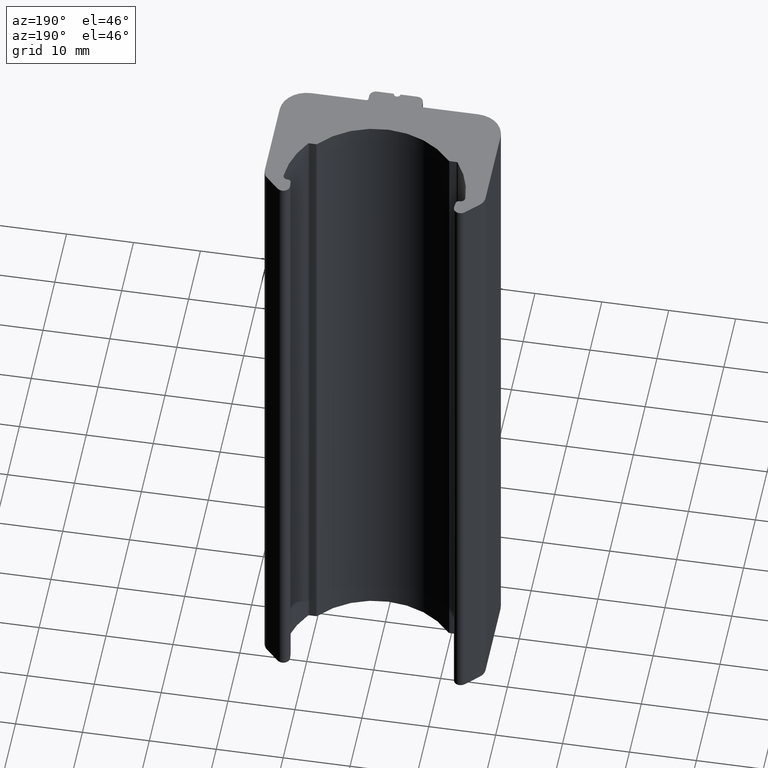
[diagram: clean part render]
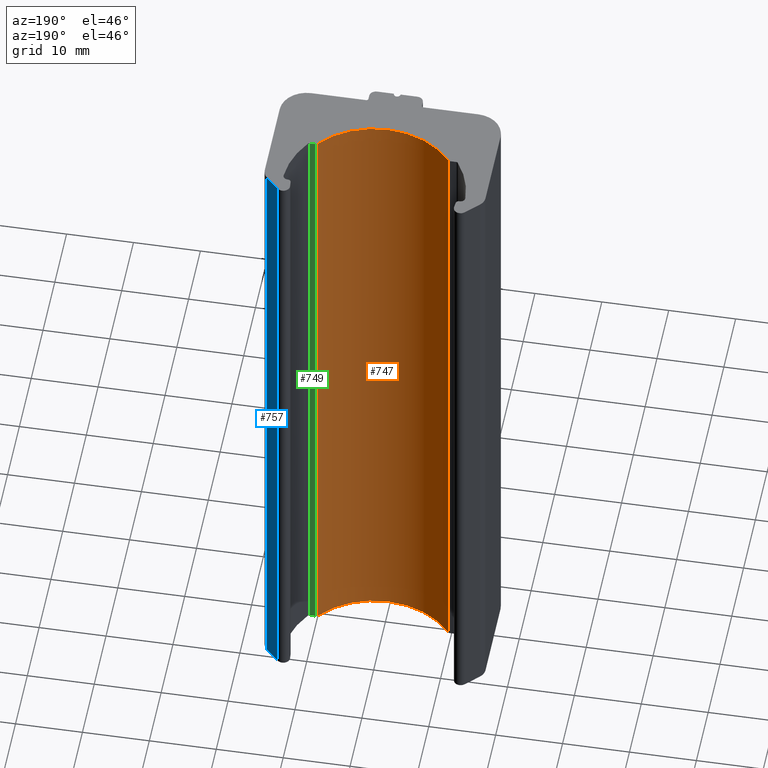
[diagram: same view with three faces highlighted in distinct colors, each labeled with its STEP entity id]
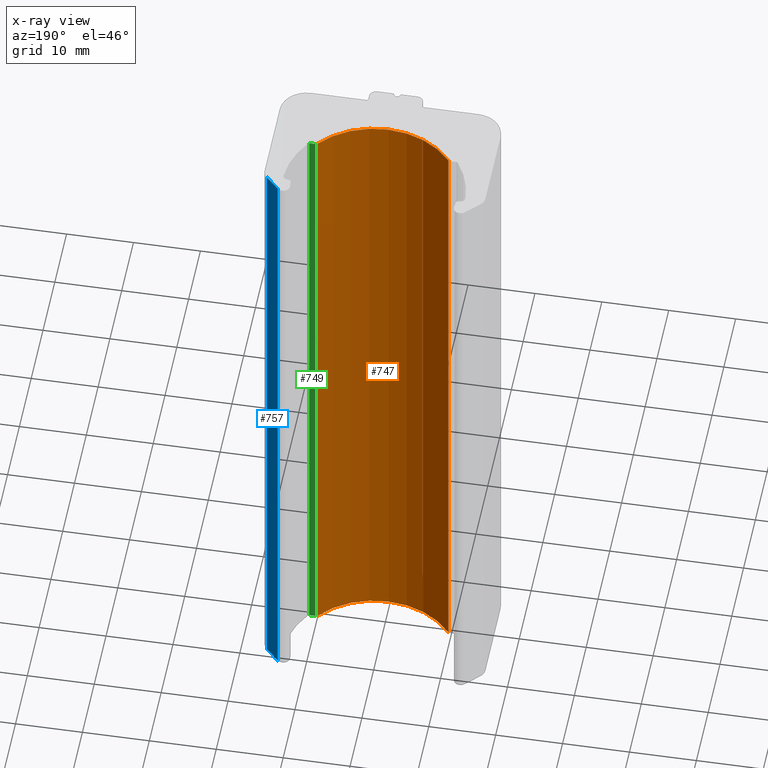
[diagram: x-ray of the same camera — body ghosted, the three highlighted faces saturated]
A machine part, auxiliary view with three faces highlighted in distinct colors.
The next image is the same camera in x-ray (body ghosted, the three faces saturated) — at least one of them is partly hidden behind the body in this view.
Their STEP definitions:

[orange] entity #747 — the highlighted cylindrical surface (partial cylindrical patch) has radius 12.6 mm, axis along (0, 0, 1).
#21=CYLINDRICAL_SURFACE('',#817,12.6);
#47=FACE_OUTER_BOUND('',#87,.T.);
#87=EDGE_LOOP('',(#565,#566,#567,#568));
#123=CIRCLE('',#786,12.6);
#145=CIRCLE('',#818,12.6);
#189=LINE('',#1218,#259);
#190=LINE('',#1222,#260);
#259=VECTOR('',#969,100.);
#260=VECTOR('',#974,100.);
#311=VERTEX_POINT('',#1124);
#312=VERTEX_POINT('',#1126);
#348=VERTEX_POINT('',#1216);
#349=VERTEX_POINT('',#1220);
#387=EDGE_CURVE('',#311,#312,#123,.T.);
#433=EDGE_CURVE('',#311,#348,#189,.T.);
#434=EDGE_CURVE('',#349,#348,#145,.T.);
#435=EDGE_CURVE('',#312,#349,#190,.T.);
#565=ORIENTED_EDGE('',*,*,#433,.T.);
#566=ORIENTED_EDGE('',*,*,#434,.F.);
#567=ORIENTED_EDGE('',*,*,#435,.F.);
#568=ORIENTED_EDGE('',*,*,#387,.F.);
#747=ADVANCED_FACE('',(#47),#21,.F.);
#786=AXIS2_PLACEMENT_3D('',#1127,#883,#884);
#817=AXIS2_PLACEMENT_3D('',#1219,#970,#971);
#818=AXIS2_PLACEMENT_3D('',#1221,#972,#973);
#883=DIRECTION('center_axis',(0.,0.,1.));
#884=DIRECTION('ref_axis',(0.776098275501474,0.63061197797349,0.));
#969=DIRECTION('',(0.,0.,1.));
#970=DIRECTION('center_axis',(0.,0.,1.));
#971=DIRECTION('ref_axis',(0.776098275501474,0.63061197797349,0.));
#972=DIRECTION('center_axis',(0.,0.,-1.));
#973=DIRECTION('ref_axis',(0.776098275501474,0.63061197797349,0.));
#974=DIRECTION('',(0.,0.,1.));
#1124=CARTESIAN_POINT('',(-9.77883827131858,-7.94571092246597,-50.));
#1126=CARTESIAN_POINT('',(9.77883827131858,-7.94571092246597,-50.));
#1127=CARTESIAN_POINT('Origin',(0.,0.,-50.));
#1216=CARTESIAN_POINT('',(-9.77883827131858,-7.94571092246597,50.));
#1218=CARTESIAN_POINT('',(-9.77883827131858,-7.94571092246597,0.));
#1219=CARTESIAN_POINT('Origin',(0.,0.,0.));
#1220=CARTESIAN_POINT('',(9.77883827131858,-7.94571092246597,50.));
#1221=CARTESIAN_POINT('Origin',(0.,0.,50.));
#1222=CARTESIAN_POINT('',(9.77883827131858,-7.94571092246597,0.));

[blue] entity #757 — the highlighted planar face has unit normal (0.7071, 0.7071, 0).
#57=FACE_OUTER_BOUND('',#97,.T.);
#97=EDGE_LOOP('',(#605,#606,#607,#608));
#168=LINE('',#1147,#238);
#202=LINE('',#1258,#272);
#203=LINE('',#1261,#273);
#204=LINE('',#1262,#274);
#238=VECTOR('',#900,2.76776695296645);
#272=VECTOR('',#1016,100.);
#273=VECTOR('',#1019,2.76776695296645);
#274=VECTOR('',#1020,100.);
#321=VERTEX_POINT('',#1144);
#322=VERTEX_POINT('',#1146);
#358=VERTEX_POINT('',#1256);
#359=VERTEX_POINT('',#1260);
#397=EDGE_CURVE('',#321,#322,#168,.T.);
#453=EDGE_CURVE('',#321,#358,#202,.T.);
#454=EDGE_CURVE('',#359,#358,#203,.T.);
#455=EDGE_CURVE('',#322,#359,#204,.T.);
#605=ORIENTED_EDGE('',*,*,#453,.T.);
#606=ORIENTED_EDGE('',*,*,#454,.F.);
#607=ORIENTED_EDGE('',*,*,#455,.F.);
#608=ORIENTED_EDGE('',*,*,#397,.F.);
#726=PLANE('',#834);
#757=ADVANCED_FACE('',(#57),#726,.T.);
#834=AXIS2_PLACEMENT_3D('',#1259,#1017,#1018);
#900=DIRECTION('',(0.707106781186547,-0.707106781186547,0.));
#1016=DIRECTION('',(0.,0.,1.));
#1017=DIRECTION('center_axis',(0.707106781186548,0.707106781186548,0.));
#1018=DIRECTION('ref_axis',(-0.707106781186548,0.707106781186548,0.));
#1019=DIRECTION('',(-0.707106781186547,0.707106781186547,0.));
#1020=DIRECTION('',(0.,0.,1.));
#1144=CARTESIAN_POINT('',(13.9571067811865,2.10710678118669,-50.));
#1146=CARTESIAN_POINT('',(15.9142135623732,0.150000000000086,-50.));
#1147=CARTESIAN_POINT('',(15.9142135623732,0.150000000000086,-50.));
#1256=CARTESIAN_POINT('',(13.9571067811865,2.10710678118669,50.));
#1258=CARTESIAN_POINT('',(13.9571067811865,2.10710678118669,0.));
#1259=CARTESIAN_POINT('Origin',(15.9142135623732,0.150000000000086,0.));
#1260=CARTESIAN_POINT('',(15.9142135623732,0.150000000000086,50.));
#1261=CARTESIAN_POINT('',(15.9142135623732,0.150000000000086,50.));
#1262=CARTESIAN_POINT('',(15.9142135623732,0.150000000000086,0.));

[green] entity #749 — the highlighted planar face has unit normal (0, 1, 0).
#49=FACE_OUTER_BOUND('',#89,.T.);
#89=EDGE_LOOP('',(#573,#574,#575,#576));
#165=LINE('',#1131,#235);
#191=LINE('',#1226,#261);
#192=LINE('',#1229,#262);
#193=LINE('',#1230,#263);
#235=VECTOR('',#887,0.948047782252375);
#261=VECTOR('',#979,100.);
#262=VECTOR('',#982,0.948047782252375);
#263=VECTOR('',#983,100.);
#313=VERTEX_POINT('',#1128);
#314=VERTEX_POINT('',#1130);
#350=VERTEX_POINT('',#1224);
#351=VERTEX_POINT('',#1228);
#389=EDGE_CURVE('',#313,#314,#165,.T.);
#437=EDGE_CURVE('',#313,#350,#191,.T.);
#438=EDGE_CURVE('',#351,#350,#192,.T.);
#439=EDGE_CURVE('',#314,#351,#193,.T.);
#573=ORIENTED_EDGE('',*,*,#437,.T.);
#574=ORIENTED_EDGE('',*,*,#438,.F.);
#575=ORIENTED_EDGE('',*,*,#439,.F.);
#576=ORIENTED_EDGE('',*,*,#389,.F.);
#723=PLANE('',#821);
#749=ADVANCED_FACE('',(#49),#723,.T.);
#821=AXIS2_PLACEMENT_3D('',#1227,#980,#981);
#887=DIRECTION('',(1.,0.,0.));
#979=DIRECTION('',(0.,0.,1.));
#980=DIRECTION('center_axis',(0.,1.,0.));
#981=DIRECTION('ref_axis',(-1.,0.,0.));
#982=DIRECTION('',(-1.,0.,0.));
#983=DIRECTION('',(0.,0.,1.));
#1128=CARTESIAN_POINT('',(10.011667753969,-7.83489451585802,-50.));
#1130=CARTESIAN_POINT('',(10.9597155362214,-7.83489451585802,-50.));
#1131=CARTESIAN_POINT('',(10.9597155362214,-7.83489451585802,-50.));
#1224=CARTESIAN_POINT('',(10.011667753969,-7.83489451585802,50.));
#1226=CARTESIAN_POINT('',(10.011667753969,-7.83489451585802,0.));
#1227=CARTESIAN_POINT('Origin',(10.9597155362214,-7.83489451585802,0.));
#1228=CARTESIAN_POINT('',(10.9597155362214,-7.83489451585802,50.));
#1229=CARTESIAN_POINT('',(10.9597155362214,-7.83489451585802,50.));
#1230=CARTESIAN_POINT('',(10.9597155362214,-7.83489451585802,0.));